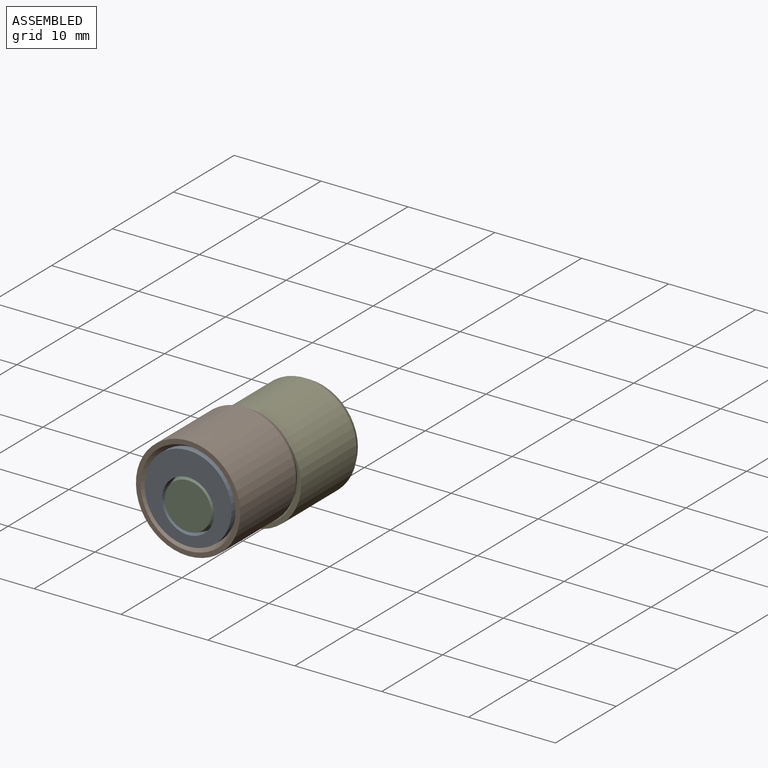
[diagram: assembled view]
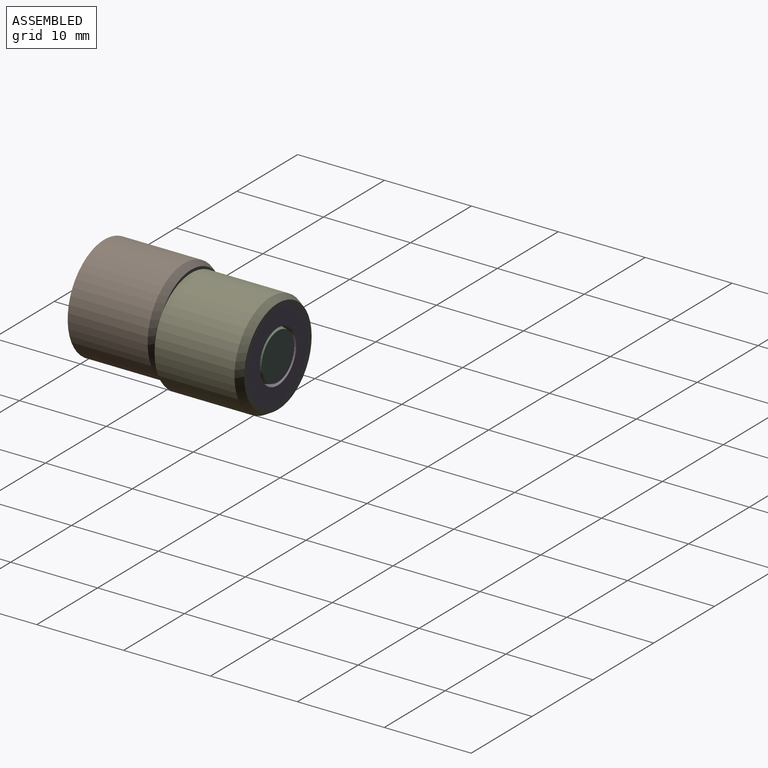
[diagram: assembled view, second angle]
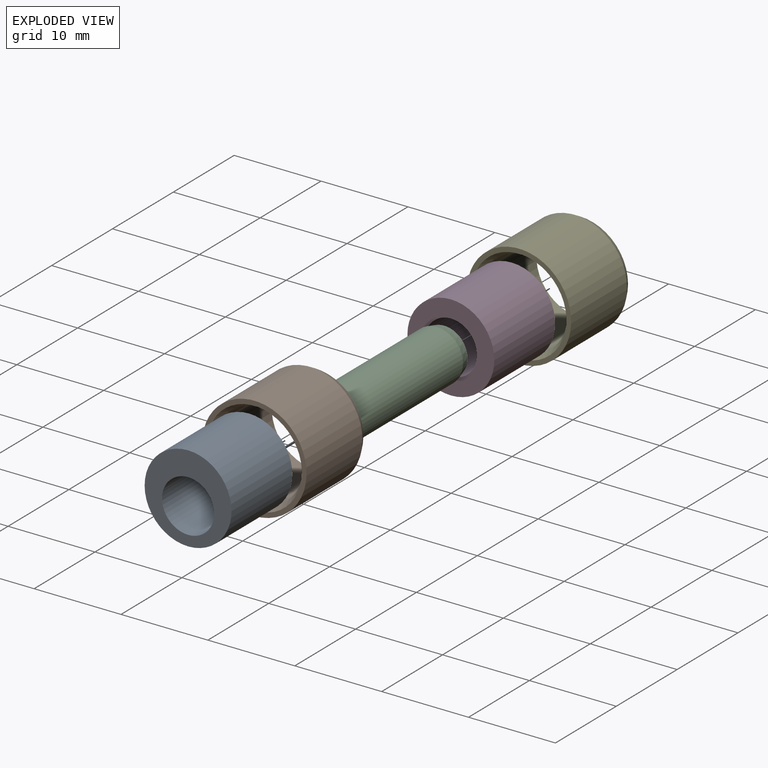
[diagram: exploded view]
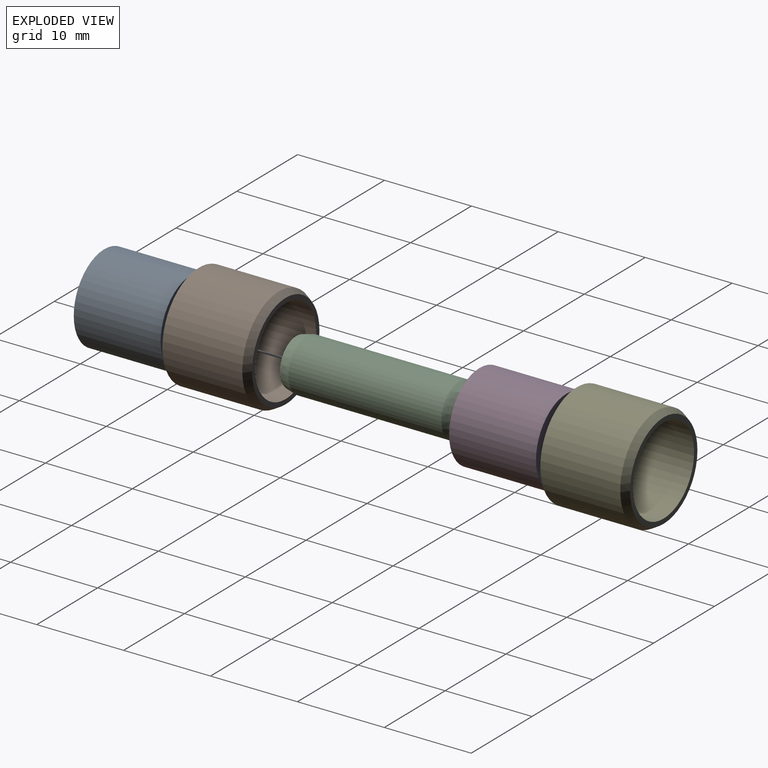
[diagram: exploded view, second angle]
ASSEMBLY  parts=5 mates=4
PART A: 4 faces, bbox 10x10x10 mm
  f0: cylinder r=5mm len=10mm, axis (0,1,0), area 314.2mm2, adj f1,f2
  f1: plane 10x10mm, normal (0,-1,0), area 50.3mm2, adj f0,f3
  f2: plane 10x10mm, normal (0,1,0), area 50.3mm2, adj f0,f3
  f3: cylinder r=3mm len=10mm, axis (0,1,0), area 188.5mm2, adj f1,f2
PART B: 6 faces, bbox 12x10x12 mm
  f0: plane 12x12mm, normal (0,-1,0), area 19.4mm2, adj f3,f4
  f1: cylinder r=5mm len=10mm, axis (0,-1,0), area 289mm2, adj f2,f4
  f2: plane 11.08x11.08mm, normal (0,1,0), area 17.8mm2, adj f1,f5
  f3: cylinder r=6mm len=12mm, axis (0,-1,0), area 346.8mm2, adj f0,f5
  f4: cone r=5mm half-angle=30deg, axis (0,-1,0), area 30.4mm2, adj f0,f1
  f5: cone r=6mm half-angle=30deg, axis (0,-1,0), area 33.5mm2, adj f2,f3
PART C: 5 faces, bbox 6x6x20 mm
  f0: plane 5.36x5.36mm, normal (0,0,1), area 22.5mm2, adj f1
  f1: cone r=2.68mm half-angle=15deg, axis (0,0,-1), area 22.2mm2, adj f0,f2
  f2: cylinder r=3mm len=17.6mm, axis (0,0,-1), area 331.8mm2, adj f1,f3
  f3: cone r=3mm half-angle=15deg, axis (0,0,1), area 22.2mm2, adj f2,f4
  f4: plane 5.36x5.36mm, normal (0,0,-1), area 22.5mm2, adj f3
PART D: 4 faces, bbox 10x10x10 mm
  f0: cylinder r=5mm len=10mm, axis (0,1,0), area 314.2mm2, adj f1,f2
  f1: plane 10x10mm, normal (0,-1,0), area 50.3mm2, adj f0,f3
  f2: plane 10x10mm, normal (0,1,0), area 50.3mm2, adj f0,f3
  f3: cylinder r=3mm len=10mm, axis (0,1,0), area 188.5mm2, adj f1,f2
PART E: same geometry as B
PLACE A t=(-0.81,2.18,-3.52)mm
PLACE B t=(-0.81,-17.82,-2.72)mm
PLACE C rot(axis=(-1,0,0),90deg) t=(-0.81,-7.82,-3.52)mm
PLACE D t=(-0.81,2.18,-3.52)mm
PLACE E t=(-0.81,-7.82,-3.52)mm
MATE fastened C.f1 <-> A.f3  axis (0,1,0) through (-0.81,-7.82,-3.52)mm
MATE fastened D.f3 <-> A.f3  axis (0,-1,0) through (-0.81,-7.82,-3.52)mm
MATE fastened B.f1 <-> A.f0  axis (0,-1,0) through (-0.81,-17.82,-2.72)mm
MATE fastened D.f0 <-> E.f1  axis (0,1,0) through (-0.81,2.18,-3.52)mm
